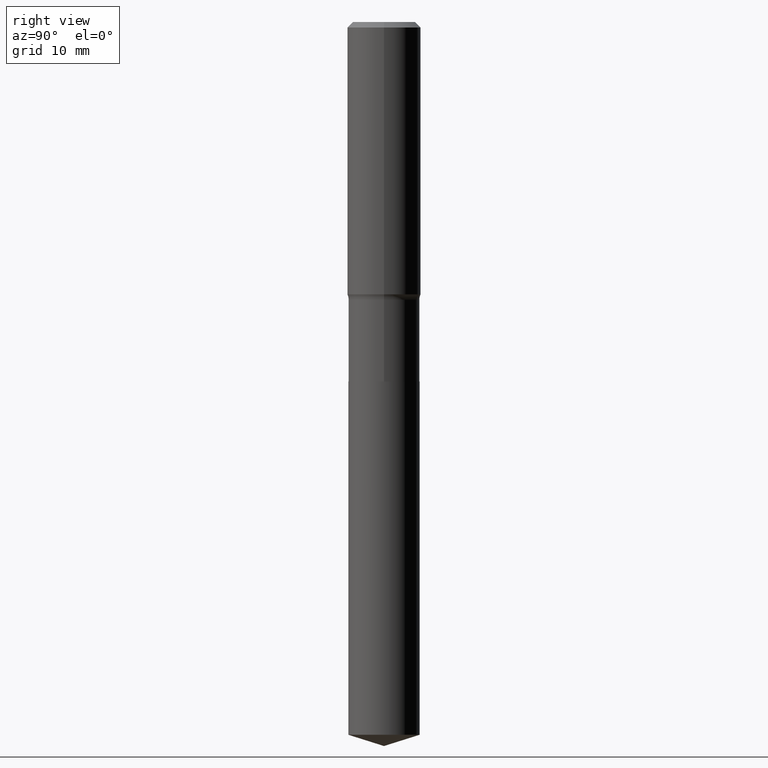
[diagram: clean part render]
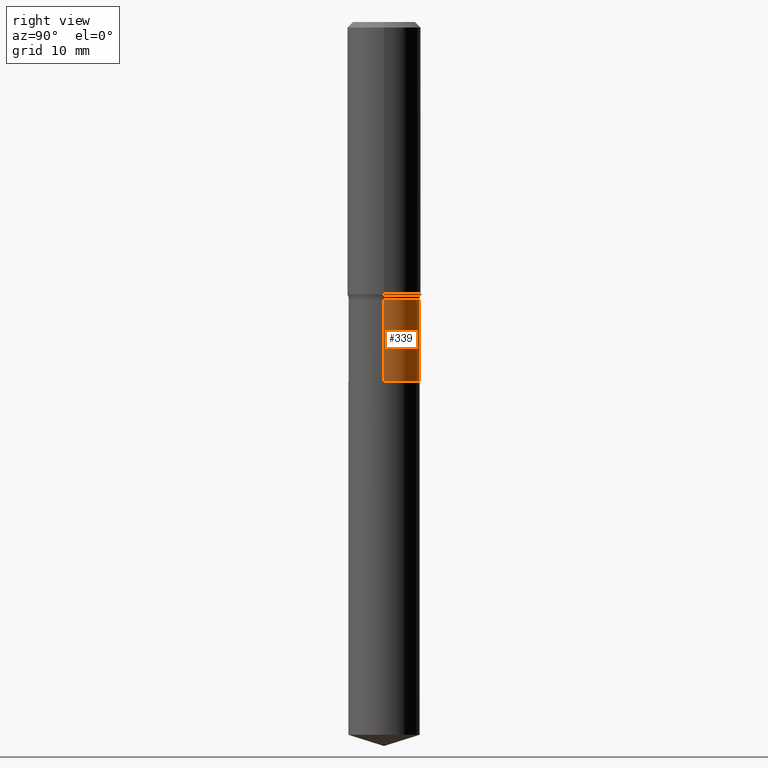
[diagram: same view with one face highlighted and labeled with its STEP entity id]
A machine part, right view. The second image highlights one B-rep face of the part: STEP entity #339.
In plain terms, the highlighted cylindrical surface (edge-blend (fillet) strip) has radius 5.8001 mm, axis along (-0, 0, 1).
Its self-contained STEP definition (entity closure, byte-faithful):
#21 = AXIS2_PLACEMENT_3D ( 'NONE', #234, #306, #313 ) ;
#24 = CARTESIAN_POINT ( 'NONE',  ( 0.2283499999999999697, -1.594559527449658749E-15, 1.113474966753001794E-29 ) ) ;
#28 = VERTEX_POINT ( 'NONE', #367 ) ;
#36 = CIRCLE ( 'NONE', #21, 0.2283499999999999419 ) ;
#43 = AXIS2_PLACEMENT_3D ( 'NONE', #359, #96, #142 ) ;
#71 = VERTEX_POINT ( 'NONE', #369 ) ;
#96 = DIRECTION ( 'NONE',  ( -2.445468806185136597E-29, 3.491481338843145583E-15, 1.000000000000000000 ) ) ;
#105 = DIRECTION ( 'NONE',  ( -2.445468806185136877E-29, 3.491481338843145188E-15, 1.000000000000000000 ) ) ;
#107 = EDGE_CURVE ( 'NONE', #247, #250, #36, .T. ) ;
#119 = AXIS2_PLACEMENT_3D ( 'NONE', #428, #466, #121 ) ;
#121 = DIRECTION ( 'NONE',  ( 1.000000000000000000, -6.982962677686266711E-15, 4.876176775795935793E-29 ) ) ;
#142 = DIRECTION ( 'NONE',  ( 1.000000000000000000, -6.982962677686270655E-15, 0.000000000000000000 ) ) ;
#145 = VECTOR ( 'NONE', #105, 39.37007874015748143 ) ;
#161 = EDGE_CURVE ( 'NONE', #71, #28, #253, .T. ) ;
#194 = EDGE_CURVE ( 'NONE', #28, #250, #408, .T. ) ;
#201 = EDGE_CURVE ( 'NONE', #71, #247, #258, .T. ) ;
#209 = ORIENTED_EDGE ( 'NONE', *, *, #107, .F. ) ;
#234 = CARTESIAN_POINT ( 'NONE',  ( 4.357580865741294420E-29, -6.221470597684601332E-15, -1.781899999999999817 ) ) ;
#247 = VERTEX_POINT ( 'NONE', #296 ) ;
#250 = VERTEX_POINT ( 'NONE', #455 ) ;
#252 = ORIENTED_EDGE ( 'NONE', *, *, #161, .T. ) ;
#253 = CIRCLE ( 'NONE', #43, 0.2283499999999999974 ) ;
#258 = LINE ( 'NONE', #24, #319 ) ;
#272 = CYLINDRICAL_SURFACE ( 'NONE', #119, 0.2283499999999999697 ) ;
#292 = ORIENTED_EDGE ( 'NONE', *, *, #194, .T. ) ;
#296 = CARTESIAN_POINT ( 'NONE',  ( 0.2283499999999999419, -7.816030125134258701E-15, -1.781899999999999817 ) ) ;
#306 = DIRECTION ( 'NONE',  ( -2.445468806185136597E-29, 3.491481338843145583E-15, 1.000000000000000000 ) ) ;
#313 = DIRECTION ( 'NONE',  ( 1.000000000000000000, -6.982962677686263555E-15, 0.000000000000000000 ) ) ;
#319 = VECTOR ( 'NONE', #478, 39.37007874015748143 ) ;
#327 = ORIENTED_EDGE ( 'NONE', *, *, #201, .F. ) ;
#339 = ADVANCED_FACE ( 'NONE', ( #463 ), #272, .T. ) ;
#359 = CARTESIAN_POINT ( 'NONE',  ( 5.640718348346634668E-29, -8.053450856175598963E-15, -2.306599999999999540 ) ) ;
#367 = CARTESIAN_POINT ( 'NONE',  ( -0.2283499999999999974, -5.514936389821909419E-15, -2.306599999999999540 ) ) ;
#369 = CARTESIAN_POINT ( 'NONE',  ( 0.2283499999999999974, -9.648010383625257910E-15, -2.306599999999999540 ) ) ;
#400 = EDGE_LOOP ( 'NONE', ( #252, #292, #209, #327 ) ) ;
#408 = LINE ( 'NONE', #450, #145 ) ;
#428 = CARTESIAN_POINT ( 'NONE',  ( 0.000000000000000000, 0.000000000000000000, 0.000000000000000000 ) ) ;
#450 = CARTESIAN_POINT ( 'NONE',  ( -0.2283499999999999697, 1.622524337108188559E-15, -1.123238827859707655E-29 ) ) ;
#455 = CARTESIAN_POINT ( 'NONE',  ( -0.2283499999999999419, -5.514936389821910208E-15, -1.781899999999999817 ) ) ;
#463 = FACE_OUTER_BOUND ( 'NONE', #400, .T. ) ;
#466 = DIRECTION ( 'NONE',  ( -2.445468806185136597E-29, 3.491481338843145583E-15, 1.000000000000000000 ) ) ;
#478 = DIRECTION ( 'NONE',  ( -2.445468806185136877E-29, 3.491481338843145188E-15, 1.000000000000000000 ) ) ;